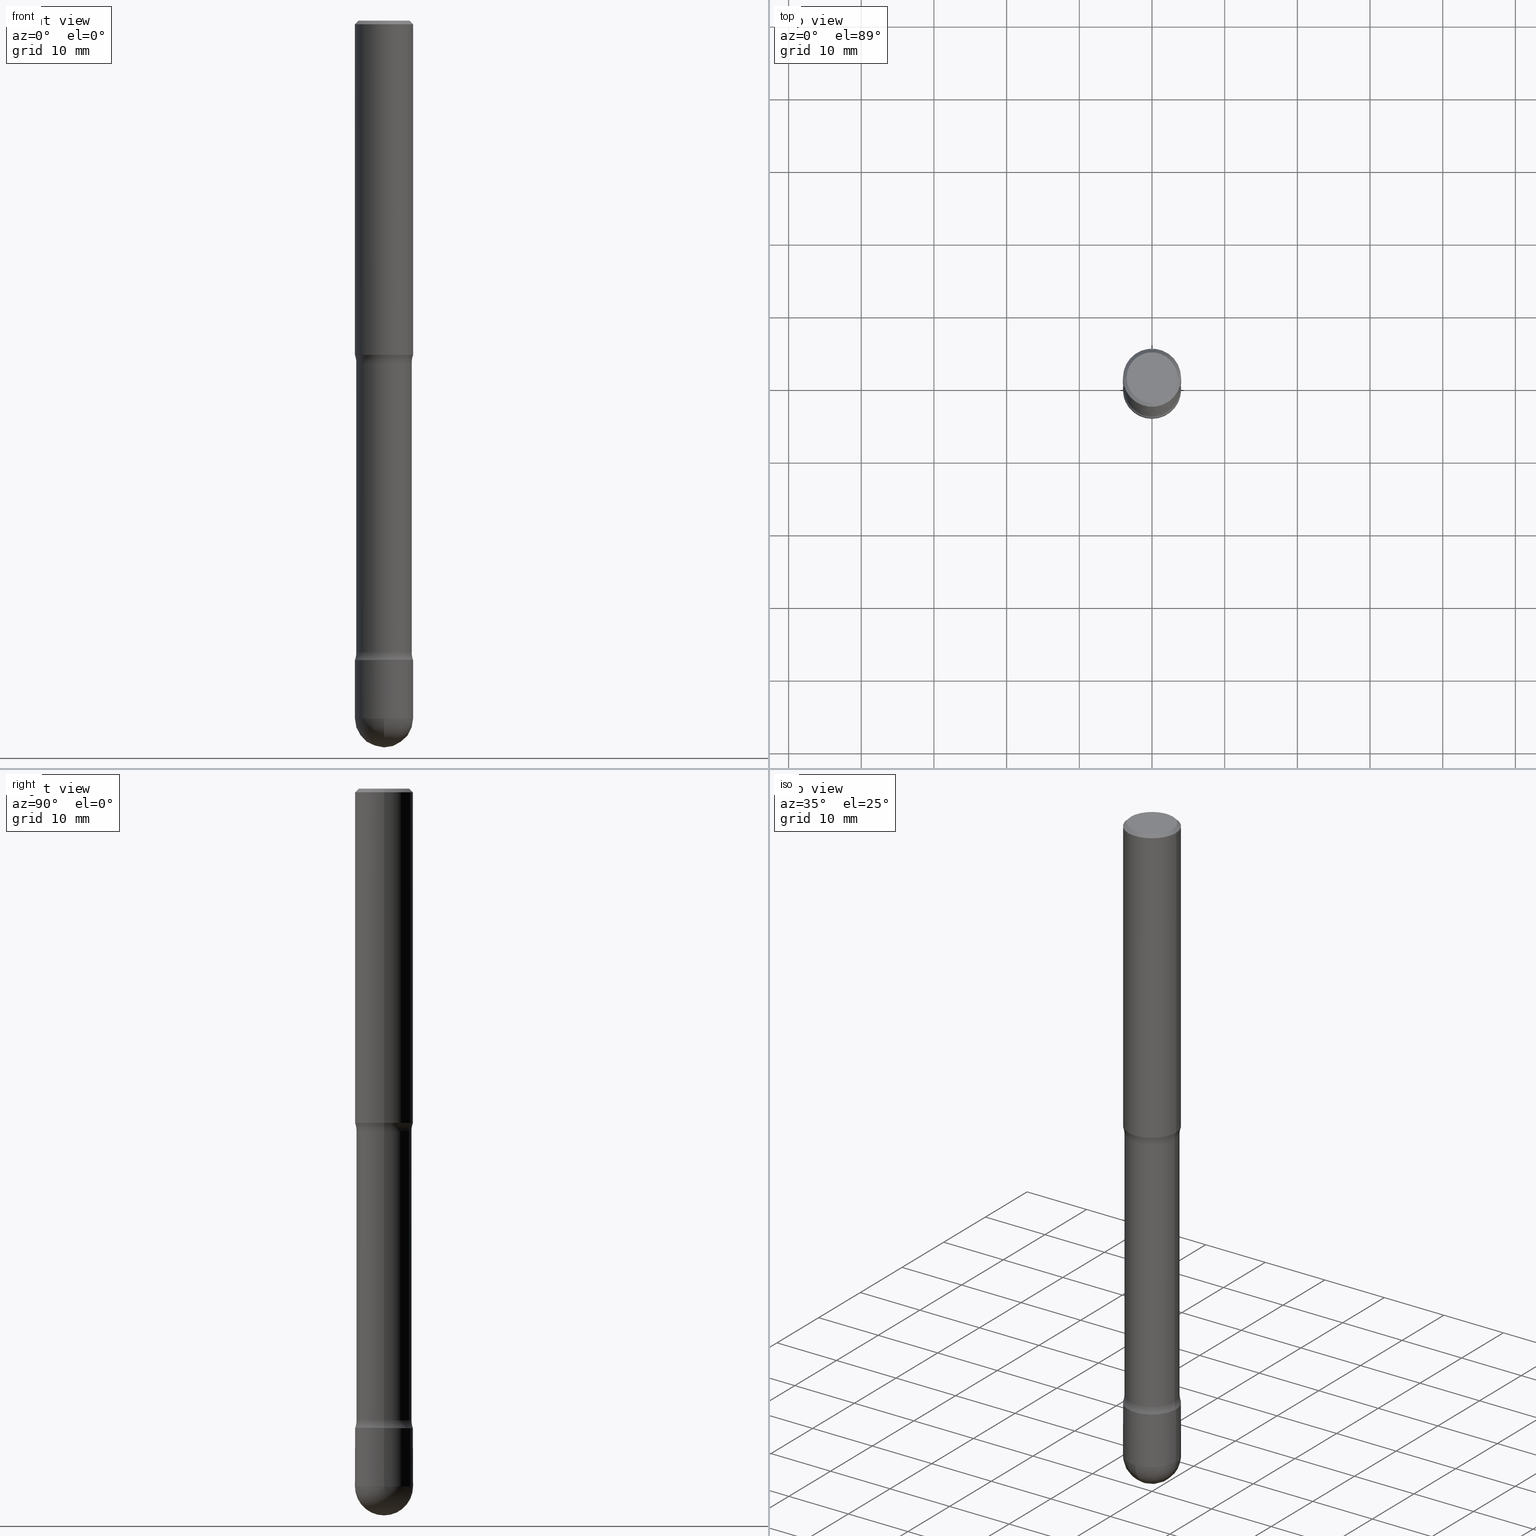
[diagram: canonical four-view strip — front | top / right | iso, engineering-drawing reading convention]
A machine part, canonical four-view strip (front | top / right | iso — engineering-drawing reading convention). The complete STEP part file that produces these views, byte-faithful:
ISO-10303-21;
HEADER;
FILE_DESCRIPTION (( 'STEP AP203' ),
    '1' );
FILE_NAME ('44616.STEP',
    '2024-02-29T19:25:39',
    ( '' ),
    ( '' ),
    'SwSTEP 2.0',
    'SolidWorks 2023',
    '' );
FILE_SCHEMA (( 'CONFIG_CONTROL_DESIGN' ));
ENDSEC;

DATA;
#1 = DIRECTION ( 'NONE',  ( -1.000000000000000000, 6.982962677686266711E-15, 0.000000000000000000 ) ) ;
#2 = EDGE_LOOP ( 'NONE', ( #315, #483, #385, #166 ) ) ;
#3 = CYLINDRICAL_SURFACE ( 'NONE', #61, 0.1499999999999998557 ) ;
#4 = CIRCLE ( 'NONE', #323, 0.1574999999999993072 ) ;
#5 = VECTOR ( 'NONE', #528, 39.37007874015748854 ) ;
#6 = VERTEX_POINT ( 'NONE', #119 ) ;
#7 = CARTESIAN_POINT ( 'NONE',  ( 0.1573673271255957018, -1.317492196341149639E-14, -3.464232672874402841 ) ) ;
#8 = DIRECTION ( 'NONE',  ( -1.000000000000000000, 6.982962677686266711E-15, 0.000000000000000000 ) ) ;
#9 = DIRECTION ( 'NONE',  ( -1.000000000000000000, 6.982962677686261977E-15, 0.000000000000000000 ) ) ;
#10 = EDGE_LOOP ( 'NONE', ( #132, #261, #346, #269 ) ) ;
#11 = DIRECTION ( 'NONE',  ( 2.445468806185136877E-29, -3.491481338843145188E-15, -1.000000000000000000 ) ) ;
#12 = APPROVAL_DATE_TIME ( #486, #389 ) ;
#13 = CARTESIAN_POINT ( 'NONE',  ( 8.472571225909024784E-29, -1.209658624655596216E-14, -3.464599999999999902 ) ) ;
#14 = ORIENTED_EDGE ( 'NONE', *, *, #124, .F. ) ;
#15 = LINE ( 'NONE', #275, #50 ) ;
#16 = DATE_AND_TIME ( #153, #371 ) ;
#17 = PLANE ( 'NONE',  #559 ) ;
#18 = AXIS2_PLACEMENT_3D ( 'NONE', #411, #501, #154 ) ;
#19 = CIRCLE ( 'NONE', #62, 0.1574999999999993072 ) ;
#20 = DIRECTION ( 'NONE',  ( -1.000000000000000000, 6.982962677686266711E-15, 0.000000000000000000 ) ) ;
#21 = APPLICATION_PROTOCOL_DEFINITION ( 'international standard', 'config_control_design', 1994, #465 ) ;
#22 = DIRECTION ( 'NONE',  ( 1.000000000000000000, -6.982962677686267499E-15, 0.000000000000000000 ) ) ;
#23 = LINE ( 'NONE', #135, #426 ) ;
#24 = EDGE_CURVE ( 'NONE', #352, #527, #78, .T. ) ;
#25 = DIRECTION ( 'NONE',  ( -1.000000000000000000, 6.982962677686269866E-15, 0.000000000000000000 ) ) ;
#26 = PERSON_AND_ORGANIZATION_ROLE ( 'creator' ) ;
#27 = FACE_OUTER_BOUND ( 'NONE', #357, .T. ) ;
#28 = ADVANCED_FACE ( 'NONE', ( #423 ), #35, .F. ) ;
#29 = COORDINATED_UNIVERSAL_TIME_OFFSET ( 5, 0, .BEHIND. ) ;
#30 = DIMENSIONAL_EXPONENTS ( 1.000000000000000000, 0.000000000000000000, 0.000000000000000000, 0.000000000000000000, 0.000000000000000000, 0.000000000000000000, 0.000000000000000000 ) ;
#31 = DIRECTION ( 'NONE',  ( -6.982962677686266711E-15, -1.000000000000000000, 3.469013325287958815E-15 ) ) ;
#32 = CONICAL_SURFACE ( 'NONE', #419, 0.1569999999999993345, 0.7853981633964721709 ) ;
#33 = EDGE_CURVE ( 'NONE', #218, #6, #298, .T. ) ;
#34 = CIRCLE ( 'NONE', #143, 0.1574999999999993072 ) ;
#35 = TOROIDAL_SURFACE ( 'NONE', #438, 0.2749999999999883649, 0.1249999999999883427 ) ;
#36 = ORGANIZATION ( 'UNSPECIFIED', 'UNSPECIFIED', '' ) ;
#37 = CC_DESIGN_PERSON_AND_ORGANIZATION_ASSIGNMENT ( #354, #454, ( #197 ) ) ;
#38 = DIRECTION ( 'NONE',  ( -6.982962677686266711E-15, -1.000000000000000000, 0.000000000000000000 ) ) ;
#39 =( NAMED_UNIT ( * ) PLANE_ANGLE_UNIT ( ) SI_UNIT ( $, .RADIAN. ) );
#40 = PRODUCT_RELATED_PRODUCT_CATEGORY ( 'detail', '', ( #148 ) ) ;
#41 = CIRCLE ( 'NONE', #360, 0.1499999999999997446 ) ;
#42 = ORIENTED_EDGE ( 'NONE', *, *, #68, .T. ) ;
#43 = EDGE_LOOP ( 'NONE', ( #396, #202, #207, #180, #244 ) ) ;
#44 = CYLINDRICAL_SURFACE ( 'NONE', #380, 0.1574999999999993350 ) ;
#45 = ORIENTED_EDGE ( 'NONE', *, *, #76, .F. ) ;
#46 = ORIENTED_EDGE ( 'NONE', *, *, #279, .T. ) ;
#47 = ORIENTED_EDGE ( 'NONE', *, *, #33, .T. ) ;
#48 = DIRECTION ( 'NONE',  ( 1.000000000000000000, -6.982962677686273810E-15, 0.000000000000000000 ) ) ;
#49 = DIRECTION ( 'NONE',  ( -2.445468806185136597E-29, 3.491481338843145583E-15, 1.000000000000000000 ) ) ;
#50 = VECTOR ( 'NONE', #451, 39.37007874015748854 ) ;
#51 = VERTEX_POINT ( 'NONE', #436 ) ;
#52 = DIRECTION ( 'NONE',  ( -1.000000000000000000, 6.982962677686267499E-15, -4.883557194083113462E-29 ) ) ;
#53 = CALENDAR_DATE ( 2024, 29, 2 ) ;
#54 = CARTESIAN_POINT ( 'NONE',  ( 4.533035439980052208E-29, -6.471973229417174909E-15, -1.853646805273080567 ) ) ;
#55 = ORIENTED_EDGE ( 'NONE', *, *, #168, .T. ) ;
#56 = ADVANCED_FACE ( 'NONE', ( #257 ), #3, .T. ) ;
#57 = CARTESIAN_POINT ( 'NONE',  ( -0.2749999999999883649, -4.551658493053532816E-15, -1.853646805273080567 ) ) ;
#58 = CARTESIAN_POINT ( 'NONE',  ( 9.229180483922148002E-29, -1.321534190724423940E-14, -3.779500000000000082 ) ) ;
#59 = CARTESIAN_POINT ( 'NONE',  ( 9.242649352976724072E-29, -1.319605372015766849E-14, -3.779500000000000082 ) ) ;
#60 = DIRECTION ( 'NONE',  ( -1.000000000000000000, 6.982962677686265922E-15, -4.876176775795935793E-29 ) ) ;
#61 = AXIS2_PLACEMENT_3D ( 'NONE', #89, #310, #9 ) ;
#62 = AXIS2_PLACEMENT_3D ( 'NONE', #59, #181, #441 ) ;
#63 = FACE_OUTER_BOUND ( 'NONE', #95, .T. ) ;
#64 = CARTESIAN_POINT ( 'NONE',  ( 0.000000000000000000, 0.000000000000000000, 0.000000000000000000 ) ) ;
#65 = DIRECTION ( 'NONE',  ( -2.445468806185136597E-29, 3.491481338843145583E-15, 1.000000000000000000 ) ) ;
#66 = PERSON_AND_ORGANIZATION ( #417, #36 ) ;
#67 = DIRECTION ( 'NONE',  ( 2.445468806185136597E-29, -3.491481338843145583E-15, -1.000000000000000000 ) ) ;
#68 = EDGE_CURVE ( 'NONE', #439, #519, #252, .T. ) ;
#69 = CIRCLE ( 'NONE', #472, 0.1574999999999997791 ) ;
#70 = ADVANCED_FACE ( 'NONE', ( #179 ), #459, .T. ) ;
#71 = ADVANCED_FACE ( 'NONE', ( #520 ), #32, .T. ) ;
#72 = ORIENTED_EDGE ( 'NONE', *, *, #444, .F. ) ;
#73 = AXIS2_PLACEMENT_3D ( 'NONE', #268, #497, #98 ) ;
#74 = AXIS2_PLACEMENT_3D ( 'NONE', #397, #213, #52 ) ;
#75 = DIRECTION ( 'NONE',  ( -1.000000000000000000, 6.982962677686265922E-15, -4.883557194083112340E-29 ) ) ;
#76 = EDGE_CURVE ( 'NONE', #519, #439, #466, .T. ) ;
#77 = ORIENTED_EDGE ( 'NONE', *, *, #508, .F. ) ;
#78 = LINE ( 'NONE', #379, #521 ) ;
#79 = EDGE_LOOP ( 'NONE', ( #112, #424 ) ) ;
#80 = AXIS2_PLACEMENT_3D ( 'NONE', #326, #189, #446 ) ;
#81 = CIRCLE ( 'NONE', #163, 0.1575000000000000011 ) ;
#82 = FACE_OUTER_BOUND ( 'NONE', #43, .T. ) ;
#83 = ORIENTED_EDGE ( 'NONE', *, *, #338, .T. ) ;
#84 = CARTESIAN_POINT ( 'NONE',  ( 8.471672938881710786E-29, -1.209530373075168983E-14, -3.464232672874402841 ) ) ;
#85 = ORIENTED_EDGE ( 'NONE', *, *, #116, .T. ) ;
#86 = DIRECTION ( 'NONE',  ( -2.445468806185136597E-29, 3.491481338843145583E-15, 1.000000000000000000 ) ) ;
#87 = CARTESIAN_POINT ( 'NONE',  ( -0.1499999999999998557, -1.104914184490302373E-14, -3.464599999999999902 ) ) ;
#88 = APPROVAL ( #533, 'UNSPECIFIED' ) ;
#89 = CARTESIAN_POINT ( 'NONE',  ( 8.472571225909024784E-29, -1.209658624655596216E-14, -3.464599999999999902 ) ) ;
#90 = EDGE_LOOP ( 'NONE', ( #523, #506, #83, #113 ) ) ;
#91 = CARTESIAN_POINT ( 'NONE',  ( 4.890937612370220610E-31, -6.982962677686216421E-17, -0.01999999999999978531 ) ) ;
#92 = FACE_OUTER_BOUND ( 'NONE', #516, .T. ) ;
#93 = AXIS2_PLACEMENT_3D ( 'NONE', #467, #260, #1 ) ;
#94 = CIRCLE ( 'NONE', #494, 0.1569999999999993345 ) ;
#95 = EDGE_LOOP ( 'NONE', ( #514, #47, #128, #210, #445 ) ) ;
#96 = CARTESIAN_POINT ( 'NONE',  ( 0.1574999999999993072, -1.374613660509239965E-14, -3.779500000000000082 ) ) ;
#97 = PERSON_AND_ORGANIZATION ( #417, #36 ) ;
#98 = DIRECTION ( 'NONE',  ( -6.982962677686266711E-15, -1.000000000000000000, 3.469013325287958815E-15 ) ) ;
#99 = CARTESIAN_POINT ( 'NONE',  ( 4.890937612370220610E-31, -6.982962677686216421E-17, -0.01999999999999978531 ) ) ;
#100 = CARTESIAN_POINT ( 'NONE',  ( 0.1574999999999993350, -1.319640286829154569E-14, -3.464599999999999902 ) ) ;
#101 = DIRECTION ( 'NONE',  ( -1.000000000000000000, 6.982962677686266711E-15, -4.883557194083112901E-29 ) ) ;
#102 = CARTESIAN_POINT ( 'NONE',  ( 8.472571225909024784E-29, -1.209658624655596216E-14, -3.464599999999999902 ) ) ;
#103 = FACE_OUTER_BOUND ( 'NONE', #2, .T. ) ;
#104 = AXIS2_PLACEMENT_3D ( 'NONE', #297, #383, #250 ) ;
#105 = CC_DESIGN_APPROVAL ( #111, ( #285 ) ) ;
#106 = DATE_TIME_ROLE ( 'creation_date' ) ;
#107 = DIRECTION ( 'NONE',  ( 2.445468806185136597E-29, -3.491481338843145583E-15, -1.000000000000000000 ) ) ;
#108 = AXIS2_PLACEMENT_3D ( 'NONE', #356, #370, #60 ) ;
#109 = AXIS2_PLACEMENT_3D ( 'NONE', #102, #264, #20 ) ;
#110 = ORIENTED_EDGE ( 'NONE', *, *, #503, .F. ) ;
#111 = APPROVAL ( #413, 'UNSPECIFIED' ) ;
#112 = ORIENTED_EDGE ( 'NONE', *, *, #375, .T. ) ;
#113 = ORIENTED_EDGE ( 'NONE', *, *, #496, .T. ) ;
#114 = CIRCLE ( 'NONE', #303, 0.1374999999999997335 ) ;
#115 = LOCAL_TIME ( 14, 25, 39.00000000000000000, #220 ) ;
#116 = EDGE_CURVE ( 'NONE', #169, #136, #512, .T. ) ;
#117 = EDGE_LOOP ( 'NONE', ( #255, #209, #251, #477 ) ) ;
#118 =( LENGTH_UNIT ( ) NAMED_UNIT ( * ) SI_UNIT ( $, .METRE. ) );
#119 = CARTESIAN_POINT ( 'NONE',  ( -0.1574999999999993350, -1.152721517453466324E-14, -3.464599999999999902 ) ) ;
#120 = LINE ( 'NONE', #289, #406 ) ;
#121 = VERTEX_POINT ( 'NONE', #201 ) ;
#122 = APPLICATION_CONTEXT ( 'configuration controlled 3d designs of mechanical parts and assemblies' ) ;
#123 = CARTESIAN_POINT ( 'NONE',  ( 4.890937612370220610E-31, -6.982962677686216421E-17, -0.01999999999999978531 ) ) ;
#124 = EDGE_CURVE ( 'NONE', #121, #457, #561, .T. ) ;
#125 = ORIENTED_EDGE ( 'NONE', *, *, #335, .F. ) ;
#126 = AXIS2_PLACEMENT_3D ( 'NONE', #435, #355, #540 ) ;
#127 = DIRECTION ( 'NONE',  ( -2.445468806185136877E-29, 3.491481338843145188E-15, 1.000000000000000000 ) ) ;
#128 = ORIENTED_EDGE ( 'NONE', *, *, #375, .F. ) ;
#129 = CC_DESIGN_PERSON_AND_ORGANIZATION_ASSIGNMENT ( #229, #26, ( #285 ) ) ;
#130 = DIRECTION ( 'NONE',  ( 1.000000000000000000, -6.982962677686269866E-15, 0.000000000000000000 ) ) ;
#131 = ORIENTED_EDGE ( 'NONE', *, *, #542, .T. ) ;
#132 = ORIENTED_EDGE ( 'NONE', *, *, #249, .F. ) ;
#133 = DIRECTION ( 'NONE',  ( -6.982962677686266711E-15, -1.000000000000000000, 3.491481338843145583E-15 ) ) ;
#134 = EDGE_CURVE ( 'NONE', #462, #121, #548, .T. ) ;
#135 = CARTESIAN_POINT ( 'NONE',  ( -0.1574999999999998901, -1.099676962482037704E-14, -3.464599999999999902 ) ) ;
#136 = VERTEX_POINT ( 'NONE', #167 ) ;
#137 = DIRECTION ( 'NONE',  ( -1.000000000000000000, 6.860497997771529196E-15, 0.000000000000000000 ) ) ;
#138 = COORDINATED_UNIVERSAL_TIME_OFFSET ( 5, 0, .BEHIND. ) ;
#139 = CYLINDRICAL_SURFACE ( 'NONE', #281, 0.1499999999999998557 ) ;
#140 = CARTESIAN_POINT ( 'NONE',  ( 8.368279793930256495E-29, -1.194768572178372876E-14, -3.421953194726920611 ) ) ;
#141 = CIRCLE ( 'NONE', #203, 0.1499999999999997446 ) ;
#142 = ADVANCED_FACE ( 'NONE', ( #517 ), #482, .T. ) ;
#143 = AXIS2_PLACEMENT_3D ( 'NONE', #272, #226, #22 ) ;
#144 = CARTESIAN_POINT ( 'NONE',  ( 4.428744008001288403E-29, -6.323072704644945461E-15, -1.811000000000002608 ) ) ;
#145 = PERSON_AND_ORGANIZATION_ROLE ( 'design_supplier' ) ;
#146 = DIRECTION ( 'NONE',  ( -2.438088387897960049E-29, 3.491481338843145188E-15, 1.000000000000000000 ) ) ;
#147 = CARTESIAN_POINT ( 'NONE',  ( -0.1575000000000000011, -5.223256082909358770E-15, -1.811000000000002608 ) ) ;
#148 = PRODUCT ( '44616', '44616', '', ( #398 ) ) ;
#149 = SPHERICAL_SURFACE ( 'NONE', #402, 0.1574999999999997513 ) ;
#150 = CALENDAR_DATE ( 2024, 29, 2 ) ;
#151 = CARTESIAN_POINT ( 'NONE',  ( 0.000000000000000000, 0.000000000000000000, 0.000000000000000000 ) ) ;
#152 = LOCAL_TIME ( 14, 25, 39.00000000000000000, #546 ) ;
#153 = CALENDAR_DATE ( 2024, 29, 2 ) ;
#154 = DIRECTION ( 'NONE',  ( 1.000000000000000000, -6.982962677686267499E-15, 0.000000000000000000 ) ) ;
#155 = ADVANCED_FACE ( 'NONE', ( #82 ), #44, .T. ) ;
#156 = CIRCLE ( 'NONE', #212, 0.1500000000000000222 ) ;
#157 = EDGE_LOOP ( 'NONE', ( #557, #390, #382, #72 ) ) ;
#158 = ORIENTED_EDGE ( 'NONE', *, *, #253, .T. ) ;
#159 = DIRECTION ( 'NONE',  ( 2.445468806185136597E-29, -3.491481338843145583E-15, -1.000000000000000000 ) ) ;
#160 = ORIENTED_EDGE ( 'NONE', *, *, #378, .F. ) ;
#161 = PLANE ( 'NONE',  #296 ) ;
#162 = AXIS2_PLACEMENT_3D ( 'NONE', #84, #216, #248 ) ;
#163 = AXIS2_PLACEMENT_3D ( 'NONE', #316, #538, #488 ) ;
#164 = CARTESIAN_POINT ( 'NONE',  ( 0.1499999999999998557, -1.312566094622169094E-14, -3.464599999999999902 ) ) ;
#165 = CARTESIAN_POINT ( 'NONE',  ( 1.096325140396823951E-15, 0.1569999999999872609, -3.464600000000000346 ) ) ;
#166 = ORIENTED_EDGE ( 'NONE', *, *, #338, .F. ) ;
#167 = CARTESIAN_POINT ( 'NONE',  ( -1.099816621735491436E-15, -0.1575000000000127409, -3.779499999999999194 ) ) ;
#168 = EDGE_CURVE ( 'NONE', #256, #349, #114, .T. ) ;
#169 = VERTEX_POINT ( 'NONE', #449 ) ;
#170 = ORIENTED_EDGE ( 'NONE', *, *, #171, .T. ) ;
#171 = EDGE_CURVE ( 'NONE', #349, #256, #230, .T. ) ;
#172 = ORIENTED_EDGE ( 'NONE', *, *, #329, .F. ) ;
#173 = VECTOR ( 'NONE', #306, 39.37007874015748143 ) ;
#174 = APPROVAL_PERSON_ORGANIZATION ( #489, #389, #452 ) ;
#175 = CARTESIAN_POINT ( 'NONE',  ( -0.1574999999999993350, 1.119104808822153067E-15, -7.747322767151444755E-30 ) ) ;
#176 = ORIENTED_EDGE ( 'NONE', *, *, #134, .T. ) ;
#177 = LINE ( 'NONE', #350, #5 ) ;
#178 = CARTESIAN_POINT ( 'NONE',  ( 0.2749999999999883649, -8.358610178804266256E-15, -1.853646805273080567 ) ) ;
#179 = FACE_OUTER_BOUND ( 'NONE', #526, .T. ) ;
#180 = ORIENTED_EDGE ( 'NONE', *, *, #24, .T. ) ;
#181 = DIRECTION ( 'NONE',  ( -2.445468806185136597E-29, 3.491481338843145583E-15, 1.000000000000000000 ) ) ;
#182 = PERSON_AND_ORGANIZATION ( #417, #36 ) ;
#183 = CARTESIAN_POINT ( 'NONE',  ( 9.601573681818597005E-16, 0.1374999999999997335, -4.779444278458813133E-16 ) ) ;
#184 = ORIENTED_EDGE ( 'NONE', *, *, #168, .F. ) ;
#185 = CARTESIAN_POINT ( 'NONE',  ( -0.2749999999999881428, -1.002737098542009693E-14, -3.421953194726923275 ) ) ;
#186 = DIRECTION ( 'NONE',  ( 2.445468806185136597E-29, -3.491481338843145583E-15, -1.000000000000000000 ) ) ;
#187 = CIRCLE ( 'NONE', #358, 0.1574999999999993350 ) ;
#188 = AXIS2_PLACEMENT_3D ( 'NONE', #363, #224, #543 ) ;
#189 = DIRECTION ( 'NONE',  ( 2.445468806185136597E-29, -3.491481338843145583E-15, -1.000000000000000000 ) ) ;
#190 = CARTESIAN_POINT ( 'NONE',  ( 1.119104808822246547E-15, 0.1574999999999863454, -3.779500000000000526 ) ) ;
#191 = DATE_AND_TIME ( #53, #560 ) ;
#192 = CARTESIAN_POINT ( 'NONE',  ( -0.1574999999999997791, 1.029986994958723393E-15, -0.01999999999999978531 ) ) ;
#193 = CC_DESIGN_DATE_AND_TIME_ASSIGNMENT ( #404, #495, ( #197 ) ) ;
#194 = APPROVAL_ROLE ( '' ) ;
#195 = CARTESIAN_POINT ( 'NONE',  ( 9.242649352976724072E-29, -1.319605372015766849E-14, -3.779500000000000082 ) ) ;
#196 = CLOSED_SHELL ( 'NONE', ( #511, #330, #56, #299, #412, #142, #70, #515, #28, #529, #437, #71, #551, #291 ) ) ;
#197 = SECURITY_CLASSIFICATION ( '', '', #321 ) ;
#198 = CARTESIAN_POINT ( 'NONE',  ( 8.368279793930256495E-29, -1.194768572178372876E-14, -3.421953194726920611 ) ) ;
#199 = EDGE_CURVE ( 'NONE', #352, #307, #4, .T. ) ;
#200 = VERTEX_POINT ( 'NONE', #322 ) ;
#201 = CARTESIAN_POINT ( 'NONE',  ( 0.1500000000000000222, -7.452324534188433652E-15, -1.853646805273080567 ) ) ;
#202 = ORIENTED_EDGE ( 'NONE', *, *, #329, .T. ) ;
#203 = AXIS2_PLACEMENT_3D ( 'NONE', #140, #107, #544 ) ;
#204 = VECTOR ( 'NONE', #11, 39.37007874015748143 ) ;
#205 = EDGE_CURVE ( 'NONE', #457, #566, #141, .T. ) ;
#206 = ORIENTED_EDGE ( 'NONE', *, *, #242, .T. ) ;
#207 = ORIENTED_EDGE ( 'NONE', *, *, #508, .T. ) ;
#208 = DIRECTION ( 'NONE',  ( -2.445468806185136877E-29, 3.491481338843145188E-15, 1.000000000000000000 ) ) ;
#209 = ORIENTED_EDGE ( 'NONE', *, *, #458, .T. ) ;
#210 = ORIENTED_EDGE ( 'NONE', *, *, #24, .F. ) ;
#211 = ORIENTED_EDGE ( 'NONE', *, *, #458, .F. ) ;
#212 = AXIS2_PLACEMENT_3D ( 'NONE', #54, #455, #227 ) ;
#213 = DIRECTION ( 'NONE',  ( 2.445468806185136597E-29, -3.491481338843145583E-15, -1.000000000000000000 ) ) ;
#214 = APPROVAL_PERSON_ORGANIZATION ( #276, #88, #225 ) ;
#215 = CYLINDRICAL_SURFACE ( 'NONE', #337, 0.1574999999999998901 ) ;
#216 = DIRECTION ( 'NONE',  ( 2.445468806185136597E-29, -3.491481338843145583E-15, -1.000000000000000000 ) ) ;
#217 = ADVANCED_FACE ( 'NONE', ( #447 ), #414, .T. ) ;
#218 = VERTEX_POINT ( 'NONE', #280 ) ;
#219 = FACE_OUTER_BOUND ( 'NONE', #117, .T. ) ;
#220 = COORDINATED_UNIVERSAL_TIME_OFFSET ( 5, 0, .BEHIND. ) ;
#221 = DIRECTION ( 'NONE',  ( 6.860497997771531562E-15, 1.000000000000000000, -3.491481338843145583E-15 ) ) ;
#222 = DIRECTION ( 'NONE',  ( -2.445468806185136597E-29, 3.491481338843145583E-15, 1.000000000000000000 ) ) ;
#223 = ORIENTED_EDGE ( 'NONE', *, *, #542, .F. ) ;
#224 = DIRECTION ( 'NONE',  ( -2.445468806185136597E-29, 3.491481338843145583E-15, 1.000000000000000000 ) ) ;
#225 = APPROVAL_ROLE ( '' ) ;
#226 = DIRECTION ( 'NONE',  ( -2.445468806185136597E-29, 3.491481338843145583E-15, 1.000000000000000000 ) ) ;
#227 = DIRECTION ( 'NONE',  ( -1.000000000000000000, 6.982962677686266711E-15, 0.000000000000000000 ) ) ;
#228 = LINE ( 'NONE', #394, #204 ) ;
#229 = PERSON_AND_ORGANIZATION ( #417, #36 ) ;
#230 = CIRCLE ( 'NONE', #246, 0.1374999999999997335 ) ;
#231 = DIRECTION ( 'NONE',  ( -1.000000000000000000, 6.982962677686266711E-15, 0.000000000000000000 ) ) ;
#232 = ADVANCED_FACE ( 'NONE', ( #27 ), #149, .T. ) ;
#233 = DIRECTION ( 'NONE',  ( 2.445468806185136597E-29, -3.491481338843145583E-15, -1.000000000000000000 ) ) ;
#234 = AXIS2_PLACEMENT_3D ( 'NONE', #550, #479, #524 ) ;
#235 = DIRECTION ( 'NONE',  ( -1.000000000000000000, 6.982962677686266711E-15, 0.000000000000000000 ) ) ;
#236 = APPROVAL_STATUS ( 'not_yet_approved' ) ;
#237 = DIRECTION ( 'NONE',  ( 1.000000000000000000, -6.982962677686266711E-15, 0.000000000000000000 ) ) ;
#238 = CC_DESIGN_PERSON_AND_ORGANIZATION_ASSIGNMENT ( #66, #442, ( #148 ) ) ;
#239 = CALENDAR_DATE ( 2024, 29, 2 ) ;
#240 = CARTESIAN_POINT ( 'NONE',  ( -0.1374999999999997335, 9.601573681818597005E-16, -6.704743066719399103E-30 ) ) ;
#241 = VECTOR ( 'NONE', #368, 39.37007874015748143 ) ;
#242 = EDGE_CURVE ( 'NONE', #121, #462, #156, .T. ) ;
#243 = ADVANCED_BREP_SHAPE_REPRESENTATION ( '44616', ( #498, #292, #450 ), #305 ) ;
#244 = ORIENTED_EDGE ( 'NONE', *, *, #309, .F. ) ;
#245 = ORIENTED_EDGE ( 'NONE', *, *, #416, .T. ) ;
#246 = AXIS2_PLACEMENT_3D ( 'NONE', #324, #233, #443 ) ;
#247 = CC_DESIGN_APPROVAL ( #389, ( #420 ) ) ;
#248 = DIRECTION ( 'NONE',  ( -1.000000000000000000, 6.982962677686270655E-15, 0.000000000000000000 ) ) ;
#249 = EDGE_CURVE ( 'NONE', #200, #475, #263, .T. ) ;
#250 = DIRECTION ( 'NONE',  ( -1.000000000000000000, 6.982962677686270655E-15, 0.000000000000000000 ) ) ;
#251 = ORIENTED_EDGE ( 'NONE', *, *, #496, .F. ) ;
#252 = CIRCLE ( 'NONE', #104, 0.1573673271255957018 ) ;
#253 = EDGE_CURVE ( 'NONE', #256, #507, #480, .T. ) ;
#254 = AXIS2_PLACEMENT_3D ( 'NONE', #403, #532, #137 ) ;
#255 = ORIENTED_EDGE ( 'NONE', *, *, #502, .T. ) ;
#256 = VERTEX_POINT ( 'NONE', #240 ) ;
#257 = FACE_OUTER_BOUND ( 'NONE', #464, .T. ) ;
#258 = EDGE_LOOP ( 'NONE', ( #211, #288, #46, #332 ) ) ;
#259 = DIRECTION ( 'NONE',  ( 2.445468806185136597E-29, -3.491481338843145583E-15, -1.000000000000000000 ) ) ;
#260 = DIRECTION ( 'NONE',  ( 2.445468806185136597E-29, -3.491481338843145583E-15, -1.000000000000000000 ) ) ;
#261 = ORIENTED_EDGE ( 'NONE', *, *, #372, .T. ) ;
#262 = CC_DESIGN_SECURITY_CLASSIFICATION ( #197, ( #420 ) ) ;
#263 = CIRCLE ( 'NONE', #336, 0.1569999999999993345 ) ;
#264 = DIRECTION ( 'NONE',  ( 2.445468806185136597E-29, -3.491481338843145583E-15, -1.000000000000000000 ) ) ;
#265 = CALENDAR_DATE ( 2024, 29, 2 ) ;
#266 = VECTOR ( 'NONE', #490, 39.37007874015748143 ) ;
#267 = FACE_OUTER_BOUND ( 'NONE', #341, .T. ) ;
#268 = CARTESIAN_POINT ( 'NONE',  ( 9.229180483922148002E-29, -1.321534190724423940E-14, -3.779500000000000082 ) ) ;
#269 = ORIENTED_EDGE ( 'NONE', *, *, #456, .F. ) ;
#270 = CARTESIAN_POINT ( 'NONE',  ( -0.1500000000000000222, -5.424528827764234902E-15, -1.853646805273080567 ) ) ;
#271 = COORDINATED_UNIVERSAL_TIME_OFFSET ( 5, 0, .BEHIND. ) ;
#272 = CARTESIAN_POINT ( 'NONE',  ( 9.242649352976724072E-29, -1.319605372015766849E-14, -3.779500000000000082 ) ) ;
#273 = DIRECTION ( 'NONE',  ( -2.445468806185136597E-29, 3.491481338843145583E-15, 1.000000000000000000 ) ) ;
#274 = ADVANCED_FACE ( 'NONE', ( #487 ), #493, .F. ) ;
#275 = CARTESIAN_POINT ( 'NONE',  ( -0.1569999999999993345, -1.098103415141260940E-14, -3.464599999999999902 ) ) ;
#276 = PERSON_AND_ORGANIZATION ( #417, #36 ) ;
#277 = DIRECTION ( 'NONE',  ( 1.000000000000000000, -6.982962677686266711E-15, 4.876176775795936353E-29 ) ) ;
#278 = DIRECTION ( 'NONE',  ( 2.445468806185136597E-29, -3.491481338843145583E-15, -1.000000000000000000 ) ) ;
#279 = EDGE_CURVE ( 'NONE', #507, #388, #23, .T. ) ;
#280 = CARTESIAN_POINT ( 'NONE',  ( -0.1574999999999993072, -1.152721517453466482E-14, -3.779500000000000082 ) ) ;
#281 = AXIS2_PLACEMENT_3D ( 'NONE', #418, #159, #562 ) ;
#282 = PERSON_AND_ORGANIZATION ( #417, #36 ) ;
#283 = DIRECTION ( 'NONE',  ( 1.000000000000000000, -6.982962677686267499E-15, 0.000000000000000000 ) ) ;
#284 = FACE_OUTER_BOUND ( 'NONE', #157, .T. ) ;
#285 = PRODUCT_DEFINITION ( 'UNKNOWN', '', #420, #499 ) ;
#286 = AXIS2_PLACEMENT_3D ( 'NONE', #361, #319, #101 ) ;
#287 = CIRCLE ( 'NONE', #328, 0.1574999999999997791 ) ;
#288 = ORIENTED_EDGE ( 'NONE', *, *, #378, .T. ) ;
#289 = CARTESIAN_POINT ( 'NONE',  ( 0.1574999999999997791, -1.150358061425876908E-15, -0.01999999999999978531 ) ) ;
#290 = VERTEX_POINT ( 'NONE', #401 ) ;
#291 = ADVANCED_FACE ( 'NONE', ( #92 ), #17, .T. ) ;
#292 = MANIFOLD_SOLID_BREP ( 'Body-Move/Copy2[2]', #196 ) ;
#293 = ORIENTED_EDGE ( 'NONE', *, *, #249, .T. ) ;
#294 = CC_DESIGN_PERSON_AND_ORGANIZATION_ASSIGNMENT ( #182, #145, ( #420 ) ) ;
#295 = AXIS2_PLACEMENT_3D ( 'NONE', #339, #425, #565 ) ;
#296 = AXIS2_PLACEMENT_3D ( 'NONE', #165, #422, #463 ) ;
#297 = CARTESIAN_POINT ( 'NONE',  ( 8.471672938881710786E-29, -1.209530373075168983E-14, -3.464232672874402841 ) ) ;
#298 = LINE ( 'NONE', #175, #369 ) ;
#299 = ADVANCED_FACE ( 'NONE', ( #103 ), #536, .F. ) ;
#300 = LENGTH_MEASURE_WITH_UNIT ( LENGTH_MEASURE( 0.02539999999999999897 ), #118 );
#301 = ORIENTED_EDGE ( 'NONE', *, *, #503, .T. ) ;
#302 = DIRECTION ( 'NONE',  ( 2.445468806185136597E-29, -3.491481338843145583E-15, -1.000000000000000000 ) ) ;
#303 = AXIS2_PLACEMENT_3D ( 'NONE', #151, #491, #453 ) ;
#304 = EDGE_LOOP ( 'NONE', ( #55, #131, #469, #393 ) ) ;
#305 =( GEOMETRIC_REPRESENTATION_CONTEXT ( 3 ) GLOBAL_UNCERTAINTY_ASSIGNED_CONTEXT ( ( #552 ) ) GLOBAL_UNIT_ASSIGNED_CONTEXT ( ( #421, #39, #340 ) ) REPRESENTATION_CONTEXT ( 'NONE', 'WORKASPACE' ) );
#306 = DIRECTION ( 'NONE',  ( 2.445468806185136877E-29, -3.491481338843145188E-15, -1.000000000000000000 ) ) ;
#307 = VERTEX_POINT ( 'NONE', #190 ) ;
#308 = CARTESIAN_POINT ( 'NONE',  ( 0.1374999999999997335, -1.046838268059730322E-15, 7.017535886221982554E-30 ) ) ;
#309 = EDGE_CURVE ( 'NONE', #6, #527, #187, .T. ) ;
#310 = DIRECTION ( 'NONE',  ( 2.445468806185136597E-29, -3.491481338843145583E-15, -1.000000000000000000 ) ) ;
#311 = ORIENTED_EDGE ( 'NONE', *, *, #444, .T. ) ;
#312 = CYLINDRICAL_SURFACE ( 'NONE', #558, 0.1574999999999993350 ) ;
#313 = CARTESIAN_POINT ( 'NONE',  ( -0.1573673271255957018, -1.099641355874640939E-14, -3.464232672874402841 ) ) ;
#314 = DIRECTION ( 'NONE',  ( 2.445468806185136877E-29, -3.491481338843145188E-15, -1.000000000000000000 ) ) ;
#315 = ORIENTED_EDGE ( 'NONE', *, *, #242, .F. ) ;
#316 = CARTESIAN_POINT ( 'NONE',  ( 4.428744008001288403E-29, -6.323072704644945461E-15, -1.811000000000002608 ) ) ;
#317 = APPROVAL_DATE_TIME ( #410, #88 ) ;
#318 = FACE_OUTER_BOUND ( 'NONE', #428, .T. ) ;
#319 = DIRECTION ( 'NONE',  ( 2.445468806185136597E-29, -3.491481338843145583E-15, -1.000000000000000000 ) ) ;
#320 = DIRECTION ( 'NONE',  ( 1.000000000000000000, -6.982962677686266711E-15, 4.876176775795936353E-29 ) ) ;
#321 = SECURITY_CLASSIFICATION_LEVEL ( 'unclassified' ) ;
#322 = CARTESIAN_POINT ( 'NONE',  ( -0.1569999999999993345, -1.097908788540677166E-14, -3.464599999999999902 ) ) ;
#323 = AXIS2_PLACEMENT_3D ( 'NONE', #195, #222, #283 ) ;
#324 = CARTESIAN_POINT ( 'NONE',  ( 0.000000000000000000, 0.000000000000000000, 0.000000000000000000 ) ) ;
#325 = DIRECTION ( 'NONE',  ( 1.000000000000000000, 0.000000000000000000, 0.000000000000000000 ) ) ;
#326 = CARTESIAN_POINT ( 'NONE',  ( 8.368279793930263222E-29, -1.194768572178373665E-14, -3.421953194726923275 ) ) ;
#327 = TOROIDAL_SURFACE ( 'NONE', #80, 0.2749999999999881428, 0.1249999999999881206 ) ;
#328 = AXIS2_PLACEMENT_3D ( 'NONE', #99, #448, #231 ) ;
#329 = EDGE_CURVE ( 'NONE', #218, #136, #504, .T. ) ;
#330 = ADVANCED_FACE ( 'NONE', ( #284 ), #327, .F. ) ;
#331 = CARTESIAN_POINT ( 'NONE',  ( -0.1499999999999997446, -1.090024132013079034E-14, -3.421953194726920611 ) ) ;
#332 = ORIENTED_EDGE ( 'NONE', *, *, #386, .F. ) ;
#333 = FACE_OUTER_BOUND ( 'NONE', #473, .T. ) ;
#334 = ORIENTED_EDGE ( 'NONE', *, *, #461, .F. ) ;
#335 = EDGE_CURVE ( 'NONE', #169, #307, #471, .T. ) ;
#336 = AXIS2_PLACEMENT_3D ( 'NONE', #13, #67, #408 ) ;
#337 = AXIS2_PLACEMENT_3D ( 'NONE', #534, #186, #8 ) ;
#338 = EDGE_CURVE ( 'NONE', #462, #388, #554, .T. ) ;
#339 = CARTESIAN_POINT ( 'NONE',  ( 4.533035439980052208E-29, -6.471973229417174909E-15, -1.853646805273080567 ) ) ;
#340 =( NAMED_UNIT ( * ) SI_UNIT ( $, .STERADIAN. ) SOLID_ANGLE_UNIT ( ) );
#341 = EDGE_LOOP ( 'NONE', ( #14, #206, #301, #377 ) ) ;
#342 = ORIENTED_EDGE ( 'NONE', *, *, #564, .F. ) ;
#343 = ORIENTED_EDGE ( 'NONE', *, *, #372, .F. ) ;
#344 = DIRECTION ( 'NONE',  ( 2.445468806185136597E-29, -3.491481338843145583E-15, -1.000000000000000000 ) ) ;
#345 = AXIS2_PLACEMENT_3D ( 'NONE', #392, #75, #38 ) ;
#346 = ORIENTED_EDGE ( 'NONE', *, *, #76, .T. ) ;
#347 = APPROVAL_PERSON_ORGANIZATION ( #282, #111, #194 ) ;
#348 = CARTESIAN_POINT ( 'NONE',  ( 8.472571225909024784E-29, -1.209658624655596216E-14, -3.464599999999999902 ) ) ;
#349 = VERTEX_POINT ( 'NONE', #308 ) ;
#350 = CARTESIAN_POINT ( 'NONE',  ( 0.1569999999999993345, -1.319291138695270268E-14, -3.464599999999999902 ) ) ;
#351 = DIRECTION ( 'NONE',  ( -1.000000000000000000, 6.860497997771533140E-15, 0.000000000000000000 ) ) ;
#352 = VERTEX_POINT ( 'NONE', #96 ) ;
#353 = DIRECTION ( 'NONE',  ( 2.445468806185136597E-29, -3.491481338843145583E-15, -1.000000000000000000 ) ) ;
#354 = PERSON_AND_ORGANIZATION ( #417, #36 ) ;
#355 = DIRECTION ( 'NONE',  ( -2.445468806185136597E-29, 3.491481338843145583E-15, 1.000000000000000000 ) ) ;
#356 = CARTESIAN_POINT ( 'NONE',  ( 8.472571225909024784E-29, -1.209658624655596216E-14, -3.464599999999999902 ) ) ;
#357 = EDGE_LOOP ( 'NONE', ( #433, #400, #556, #77 ) ) ;
#358 = AXIS2_PLACEMENT_3D ( 'NONE', #366, #65, #237 ) ;
#359 = CARTESIAN_POINT ( 'NONE',  ( 0.1569999999999993345, -1.319355264485483727E-14, -3.464599999999999902 ) ) ;
#360 = AXIS2_PLACEMENT_3D ( 'NONE', #198, #555, #509 ) ;
#361 = CARTESIAN_POINT ( 'NONE',  ( 4.533035439980052208E-29, -6.471973229417174909E-15, -1.853646805273080567 ) ) ;
#362 = ADVANCED_FACE ( 'NONE', ( #63 ), #312, .T. ) ;
#363 = CARTESIAN_POINT ( 'NONE',  ( 8.472571225909024784E-29, -1.209658624655596216E-14, -3.464599999999999902 ) ) ;
#364 = DIRECTION ( 'NONE',  ( 0.000000000000000000, 0.000000000000000000, 1.000000000000000000 ) ) ;
#365 = FACE_OUTER_BOUND ( 'NONE', #10, .T. ) ;
#366 = CARTESIAN_POINT ( 'NONE',  ( 8.472571225909024784E-29, -1.209658624655596216E-14, -3.464599999999999902 ) ) ;
#367 = APPROVAL_DATE_TIME ( #191, #111 ) ;
#368 = DIRECTION ( 'NONE',  ( -0.7071067811865523467, 2.468850131082307548E-15, -0.7071067811865426878 ) ) ;
#369 = VECTOR ( 'NONE', #127, 39.37007874015748143 ) ;
#370 = DIRECTION ( 'NONE',  ( 2.438088387897960049E-29, -3.491481338843145188E-15, -1.000000000000000000 ) ) ;
#371 = LOCAL_TIME ( 14, 25, 39.00000000000000000, #271 ) ;
#372 = EDGE_CURVE ( 'NONE', #200, #519, #15, .T. ) ;
#373 = CLOSED_SHELL ( 'NONE', ( #362, #232, #217, #155, #274 ) ) ;
#374 = CIRCLE ( 'NONE', #254, 0.1249999999999881206 ) ;
#375 = EDGE_CURVE ( 'NONE', #527, #6, #460, .T. ) ;
#376 = DIRECTION ( 'NONE',  ( 0.7071067811865523467, -7.319954787623271823E-15, -0.7071067811865426878 ) ) ;
#377 = ORIENTED_EDGE ( 'NONE', *, *, #205, .F. ) ;
#378 = EDGE_CURVE ( 'NONE', #290, #507, #69, .T. ) ;
#379 = CARTESIAN_POINT ( 'NONE',  ( 0.1574999999999993350, -1.099816621735582353E-15, 7.679978421878567204E-30 ) ) ;
#380 = AXIS2_PLACEMENT_3D ( 'NONE', #547, #273, #277 ) ;
#381 = CIRCLE ( 'NONE', #427, 0.1575000000000000011 ) ;
#382 = ORIENTED_EDGE ( 'NONE', *, *, #205, .T. ) ;
#383 = DIRECTION ( 'NONE',  ( 2.445468806185136597E-29, -3.491481338843145583E-15, -1.000000000000000000 ) ) ;
#384 = ORIENTED_EDGE ( 'NONE', *, *, #171, .F. ) ;
#385 = ORIENTED_EDGE ( 'NONE', *, *, #386, .T. ) ;
#386 = EDGE_CURVE ( 'NONE', #51, #388, #381, .T. ) ;
#387 = ORIENTED_EDGE ( 'NONE', *, *, #564, .T. ) ;
#388 = VERTEX_POINT ( 'NONE', #147 ) ;
#389 = APPROVAL ( #236, 'UNSPECIFIED' ) ;
#390 = ORIENTED_EDGE ( 'NONE', *, *, #461, .T. ) ;
#391 = DIRECTION ( 'NONE',  ( -6.982962677686266711E-15, -1.000000000000000000, 3.491481338843145583E-15 ) ) ;
#392 = CARTESIAN_POINT ( 'NONE',  ( 9.229180483922148002E-29, -1.321534190724423940E-14, -3.779500000000000082 ) ) ;
#393 = ORIENTED_EDGE ( 'NONE', *, *, #253, .F. ) ;
#394 = CARTESIAN_POINT ( 'NONE',  ( 0.1574999999999998901, -1.317711468120497794E-14, -3.464599999999999902 ) ) ;
#395 = PERSON_AND_ORGANIZATION_ROLE ( 'creator' ) ;
#396 = ORIENTED_EDGE ( 'NONE', *, *, #33, .F. ) ;
#397 = CARTESIAN_POINT ( 'NONE',  ( 8.368279793930263222E-29, -1.194768572178373665E-14, -3.421953194726923275 ) ) ;
#398 = MECHANICAL_CONTEXT ( 'NONE', #465, 'mechanical' ) ;
#399 = FACE_OUTER_BOUND ( 'NONE', #258, .T. ) ;
#400 = ORIENTED_EDGE ( 'NONE', *, *, #335, .T. ) ;
#401 = CARTESIAN_POINT ( 'NONE',  ( 0.1574999999999997791, -1.150358061425876908E-15, -0.01999999999999978531 ) ) ;
#402 = AXIS2_PLACEMENT_3D ( 'NONE', #58, #541, #31 ) ;
#403 = CARTESIAN_POINT ( 'NONE',  ( 0.2749999999999881428, -1.383432267117082642E-14, -3.421953194726923275 ) ) ;
#404 = DATE_AND_TIME ( #239, #152 ) ;
#405 = PRODUCT_DEFINITION_SHAPE ( 'NONE', 'NONE',  #285 ) ;
#406 = VECTOR ( 'NONE', #376, 39.37007874015748143 ) ;
#407 = LINE ( 'NONE', #87, #266 ) ;
#408 = DIRECTION ( 'NONE',  ( -1.000000000000000000, 6.982962677686269866E-15, 0.000000000000000000 ) ) ;
#409 = DIRECTION ( 'NONE',  ( -1.000000000000000000, 6.982962677686268288E-15, 0.000000000000000000 ) ) ;
#410 = DATE_AND_TIME ( #150, #549 ) ;
#411 = CARTESIAN_POINT ( 'NONE',  ( 9.242649352976724072E-29, -1.319605372015766849E-14, -3.779500000000000082 ) ) ;
#412 = ADVANCED_FACE ( 'NONE', ( #219 ), #434, .T. ) ;
#413 = APPROVAL_STATUS ( 'not_yet_approved' ) ;
#414 = SPHERICAL_SURFACE ( 'NONE', #73, 0.1574999999999997513 ) ;
#415 = AXIS2_PLACEMENT_3D ( 'NONE', #57, #391, #130 ) ;
#416 = EDGE_CURVE ( 'NONE', #475, #200, #94, .T. ) ;
#417 = PERSON ( 'UNSPECIFIED', 'UNSPECIFIED', 'UNSPECIFIED', ('UNSPECIFIED'), ('UNSPECIFIED'), ('UNSPECIFIED') ) ;
#418 = CARTESIAN_POINT ( 'NONE',  ( 8.472571225909024784E-29, -1.209658624655596216E-14, -3.464599999999999902 ) ) ;
#419 = AXIS2_PLACEMENT_3D ( 'NONE', #348, #49, #530 ) ;
#420 = PRODUCT_DEFINITION_FORMATION_WITH_SPECIFIED_SOURCE ( 'ANY', '', #148, .NOT_KNOWN. ) ;
#421 =( CONVERSION_BASED_UNIT ( 'INCH', #300 ) LENGTH_UNIT ( ) NAMED_UNIT ( #30 ) );
#422 = DIRECTION ( 'NONE',  ( 2.438088387897960049E-29, -3.491481338843145188E-15, -1.000000000000000000 ) ) ;
#423 = FACE_OUTER_BOUND ( 'NONE', #90, .T. ) ;
#424 = ORIENTED_EDGE ( 'NONE', *, *, #309, .T. ) ;
#425 = DIRECTION ( 'NONE',  ( 2.445468806185136597E-29, -3.491481338843145583E-15, -1.000000000000000000 ) ) ;
#426 = VECTOR ( 'NONE', #314, 39.37007874015748143 ) ;
#427 = AXIS2_PLACEMENT_3D ( 'NONE', #144, #259, #409 ) ;
#428 = EDGE_LOOP ( 'NONE', ( #334, #45, #311, #387 ) ) ;
#429 = CARTESIAN_POINT ( 'NONE',  ( 4.533035439980052208E-29, -6.471973229417174909E-15, -1.853646805273080567 ) ) ;
#430 = EDGE_LOOP ( 'NONE', ( #343, #432, #531, #42 ) ) ;
#431 = EDGE_CURVE ( 'NONE', #307, #218, #19, .T. ) ;
#432 = ORIENTED_EDGE ( 'NONE', *, *, #416, .F. ) ;
#433 = ORIENTED_EDGE ( 'NONE', *, *, #116, .F. ) ;
#434 = CYLINDRICAL_SURFACE ( 'NONE', #109, 0.1574999999999998901 ) ;
#435 = CARTESIAN_POINT ( 'NONE',  ( 8.472571225909024784E-29, -1.209658624655596216E-14, -3.464599999999999902 ) ) ;
#436 = CARTESIAN_POINT ( 'NONE',  ( 0.1575000000000000011, -4.276979600359918976E-15, -1.811000000000002608 ) ) ;
#437 = ADVANCED_FACE ( 'NONE', ( #318 ), #505, .F. ) ;
#438 = AXIS2_PLACEMENT_3D ( 'NONE', #429, #344, #468 ) ;
#439 = VERTEX_POINT ( 'NONE', #7 ) ;
#440 = CONICAL_SURFACE ( 'NONE', #126, 0.1569999999999993345, 0.7853981633964721709 ) ;
#441 = DIRECTION ( 'NONE',  ( 1.000000000000000000, -6.982962677686267499E-15, 0.000000000000000000 ) ) ;
#442 = PERSON_AND_ORGANIZATION_ROLE ( 'design_owner' ) ;
#443 = DIRECTION ( 'NONE',  ( -1.000000000000000000, 6.982962677686265922E-15, -4.876176775795935793E-29 ) ) ;
#444 = EDGE_CURVE ( 'NONE', #519, #566, #513, .T. ) ;
#445 = ORIENTED_EDGE ( 'NONE', *, *, #199, .T. ) ;
#446 = DIRECTION ( 'NONE',  ( -1.000000000000000000, 6.982962677686267499E-15, -4.883557194083113462E-29 ) ) ;
#447 = FACE_OUTER_BOUND ( 'NONE', #478, .T. ) ;
#448 = DIRECTION ( 'NONE',  ( 2.445468806185136597E-29, -3.491481338843145583E-15, -1.000000000000000000 ) ) ;
#449 = CARTESIAN_POINT ( 'NONE',  ( 9.607607386369019003E-29, -1.377489431165531899E-14, -3.936999999999999389 ) ) ;
#450 = AXIS2_PLACEMENT_3D ( 'NONE', #64, #364, #325 ) ;
#451 = DIRECTION ( 'NONE',  ( -0.7071067811858572361, 7.493145998867859782E-15, 0.7071067811872376874 ) ) ;
#452 = APPROVAL_ROLE ( '' ) ;
#453 = DIRECTION ( 'NONE',  ( -1.000000000000000000, 6.982962677686265922E-15, -4.876176775795935793E-29 ) ) ;
#454 = PERSON_AND_ORGANIZATION_ROLE ( 'classification_officer' ) ;
#455 = DIRECTION ( 'NONE',  ( 2.445468806185136597E-29, -3.491481338843145583E-15, -1.000000000000000000 ) ) ;
#456 = EDGE_CURVE ( 'NONE', #475, #439, #177, .T. ) ;
#457 = VERTEX_POINT ( 'NONE', #485 ) ;
#458 = EDGE_CURVE ( 'NONE', #290, #51, #228, .T. ) ;
#459 = CONICAL_SURFACE ( 'NONE', #93, 0.1574999999999997791, 0.7853981633974551624 ) ;
#460 = CIRCLE ( 'NONE', #188, 0.1574999999999993350 ) ;
#461 = EDGE_CURVE ( 'NONE', #439, #457, #374, .T. ) ;
#462 = VERTEX_POINT ( 'NONE', #270 ) ;
#463 = DIRECTION ( 'NONE',  ( -1.000000000000000000, 6.982962677686265922E-15, -4.876176775795935793E-29 ) ) ;
#464 = EDGE_LOOP ( 'NONE', ( #176, #474, #342, #110 ) ) ;
#465 = APPLICATION_CONTEXT ( 'configuration controlled 3d designs of mechanical parts and assemblies' ) ;
#466 = CIRCLE ( 'NONE', #162, 0.1573673271255957018 ) ;
#467 = CARTESIAN_POINT ( 'NONE',  ( 4.890937612370220610E-31, -6.982962677686216421E-17, -0.01999999999999978531 ) ) ;
#468 = DIRECTION ( 'NONE',  ( -1.000000000000000000, 6.982962677686266711E-15, -4.883557194083112901E-29 ) ) ;
#469 = ORIENTED_EDGE ( 'NONE', *, *, #502, .F. ) ;
#470 = DIRECTION ( 'NONE',  ( -1.000000000000000000, 6.982962677686266711E-15, 0.000000000000000000 ) ) ;
#471 = CIRCLE ( 'NONE', #234, 0.1574999999999997513 ) ;
#472 = AXIS2_PLACEMENT_3D ( 'NONE', #91, #353, #235 ) ;
#473 = EDGE_LOOP ( 'NONE', ( #245, #293 ) ) ;
#474 = ORIENTED_EDGE ( 'NONE', *, *, #124, .T. ) ;
#475 = VERTEX_POINT ( 'NONE', #359 ) ;
#476 = CARTESIAN_POINT ( 'NONE',  ( 0.000000000000000000, 0.000000000000000000, 0.000000000000000000 ) ) ;
#477 = ORIENTED_EDGE ( 'NONE', *, *, #279, .F. ) ;
#478 = EDGE_LOOP ( 'NONE', ( #125, #85, #172, #563 ) ) ;
#479 = DIRECTION ( 'NONE',  ( 1.000000000000000000, -7.105427357601001070E-15, 4.926315508542082329E-29 ) ) ;
#480 = LINE ( 'NONE', #192, #241 ) ;
#481 = CC_DESIGN_PERSON_AND_ORGANIZATION_ASSIGNMENT ( #97, #395, ( #420 ) ) ;
#482 = CONICAL_SURFACE ( 'NONE', #553, 0.1574999999999997791, 0.7853981633974551624 ) ;
#483 = ORIENTED_EDGE ( 'NONE', *, *, #518, .T. ) ;
#484 = AXIS2_PLACEMENT_3D ( 'NONE', #178, #221, #351 ) ;
#485 = CARTESIAN_POINT ( 'NONE',  ( 0.1499999999999997446, -1.023890417526618062E-14, -3.421953194726920611 ) ) ;
#486 = DATE_AND_TIME ( #265, #115 ) ;
#487 = FACE_OUTER_BOUND ( 'NONE', #79, .T. ) ;
#488 = DIRECTION ( 'NONE',  ( -1.000000000000000000, 6.982962677686268288E-15, 0.000000000000000000 ) ) ;
#489 = PERSON_AND_ORGANIZATION ( #417, #36 ) ;
#490 = DIRECTION ( 'NONE',  ( 2.445468806185136877E-29, -3.491481338843145188E-15, -1.000000000000000000 ) ) ;
#491 = DIRECTION ( 'NONE',  ( 2.445468806185136597E-29, -3.491481338843145583E-15, -1.000000000000000000 ) ) ;
#492 = CARTESIAN_POINT ( 'NONE',  ( 8.472571225909024784E-29, -1.209658624655596216E-14, -3.464599999999999902 ) ) ;
#493 = PLANE ( 'NONE',  #108 ) ;
#494 = AXIS2_PLACEMENT_3D ( 'NONE', #492, #278, #25 ) ;
#495 = DATE_TIME_ROLE ( 'classification_date' ) ;
#496 = EDGE_CURVE ( 'NONE', #388, #51, #81, .T. ) ;
#497 = DIRECTION ( 'NONE',  ( 1.000000000000000000, -6.982962677686266711E-15, 4.883557194083112901E-29 ) ) ;
#498 = MANIFOLD_SOLID_BREP ( 'Body-Move/Copy2[1]', #373 ) ;
#499 = DESIGN_CONTEXT ( 'detailed design', #122, 'design' ) ;
#500 = APPLICATION_PROTOCOL_DEFINITION ( 'international standard', 'config_control_design', 1994, #122 ) ;
#501 = DIRECTION ( 'NONE',  ( -2.445468806185136597E-29, 3.491481338843145583E-15, 1.000000000000000000 ) ) ;
#502 = EDGE_CURVE ( 'NONE', #507, #290, #287, .T. ) ;
#503 = EDGE_CURVE ( 'NONE', #462, #566, #407, .T. ) ;
#504 = CIRCLE ( 'NONE', #18, 0.1574999999999993072 ) ;
#505 = TOROIDAL_SURFACE ( 'NONE', #74, 0.2749999999999881428, 0.1249999999999881206 ) ;
#506 = ORIENTED_EDGE ( 'NONE', *, *, #134, .F. ) ;
#507 = VERTEX_POINT ( 'NONE', #525 ) ;
#508 = EDGE_CURVE ( 'NONE', #136, #352, #34, .T. ) ;
#509 = DIRECTION ( 'NONE',  ( -1.000000000000000000, 6.982962677686266711E-15, 0.000000000000000000 ) ) ;
#510 = CC_DESIGN_APPROVAL ( #88, ( #197 ) ) ;
#511 = ADVANCED_FACE ( 'NONE', ( #365 ), #440, .T. ) ;
#512 = CIRCLE ( 'NONE', #345, 0.1574999999999997513 ) ;
#513 = CIRCLE ( 'NONE', #537, 0.1249999999999881206 ) ;
#514 = ORIENTED_EDGE ( 'NONE', *, *, #431, .T. ) ;
#515 = ADVANCED_FACE ( 'NONE', ( #399 ), #215, .T. ) ;
#516 = EDGE_LOOP ( 'NONE', ( #184, #384 ) ) ;
#517 = FACE_OUTER_BOUND ( 'NONE', #304, .T. ) ;
#518 = EDGE_CURVE ( 'NONE', #121, #51, #522, .T. ) ;
#519 = VERTEX_POINT ( 'NONE', #313 ) ;
#520 = FACE_OUTER_BOUND ( 'NONE', #430, .T. ) ;
#521 = VECTOR ( 'NONE', #208, 39.37007874015748143 ) ;
#522 = CIRCLE ( 'NONE', #484, 0.1249999999999883427 ) ;
#523 = ORIENTED_EDGE ( 'NONE', *, *, #518, .F. ) ;
#524 = DIRECTION ( 'NONE',  ( 7.105427357601000281E-15, 1.000000000000000000, 0.000000000000000000 ) ) ;
#525 = CARTESIAN_POINT ( 'NONE',  ( -0.1574999999999997791, 1.029986994958723393E-15, -0.01999999999999978531 ) ) ;
#526 = EDGE_LOOP ( 'NONE', ( #223, #170, #158, #160 ) ) ;
#527 = VERTEX_POINT ( 'NONE', #100 ) ;
#528 = DIRECTION ( 'NONE',  ( 0.7071067811858572361, -2.468850131075026756E-15, 0.7071067811872376874 ) ) ;
#529 = ADVANCED_FACE ( 'NONE', ( #267 ), #139, .T. ) ;
#530 = DIRECTION ( 'NONE',  ( 1.000000000000000000, -6.982962677686269866E-15, 0.000000000000000000 ) ) ;
#531 = ORIENTED_EDGE ( 'NONE', *, *, #456, .T. ) ;
#532 = DIRECTION ( 'NONE',  ( 6.860497997771531562E-15, 1.000000000000000000, -3.491481338843145583E-15 ) ) ;
#533 = APPROVAL_STATUS ( 'not_yet_approved' ) ;
#534 = CARTESIAN_POINT ( 'NONE',  ( 8.472571225909024784E-29, -1.209658624655596216E-14, -3.464599999999999902 ) ) ;
#535 = DIRECTION ( 'NONE',  ( 1.000000000000000000, -6.982962677686265922E-15, 4.876176775795935793E-29 ) ) ;
#536 = TOROIDAL_SURFACE ( 'NONE', #286, 0.2749999999999883649, 0.1249999999999883427 ) ;
#537 = AXIS2_PLACEMENT_3D ( 'NONE', #185, #133, #48 ) ;
#538 = DIRECTION ( 'NONE',  ( 2.445468806185136597E-29, -3.491481338843145583E-15, -1.000000000000000000 ) ) ;
#539 = SHAPE_DEFINITION_REPRESENTATION ( #405, #243 ) ;
#540 = DIRECTION ( 'NONE',  ( 1.000000000000000000, -6.982962677686269866E-15, 0.000000000000000000 ) ) ;
#541 = DIRECTION ( 'NONE',  ( 1.000000000000000000, -6.982962677686266711E-15, 4.883557194083112901E-29 ) ) ;
#542 = EDGE_CURVE ( 'NONE', #349, #290, #120, .T. ) ;
#543 = DIRECTION ( 'NONE',  ( 1.000000000000000000, -6.982962677686266711E-15, 0.000000000000000000 ) ) ;
#544 = DIRECTION ( 'NONE',  ( -1.000000000000000000, 6.982962677686266711E-15, 0.000000000000000000 ) ) ;
#545 = CC_DESIGN_DATE_AND_TIME_ASSIGNMENT ( #16, #106, ( #285 ) ) ;
#546 = COORDINATED_UNIVERSAL_TIME_OFFSET ( 5, 0, .BEHIND. ) ;
#547 = CARTESIAN_POINT ( 'NONE',  ( 0.000000000000000000, 0.000000000000000000, 0.000000000000000000 ) ) ;
#548 = CIRCLE ( 'NONE', #295, 0.1500000000000000222 ) ;
#549 = LOCAL_TIME ( 14, 25, 39.00000000000000000, #138 ) ;
#550 = CARTESIAN_POINT ( 'NONE',  ( 9.229180483922148002E-29, -1.321534190724423940E-14, -3.779500000000000082 ) ) ;
#551 = ADVANCED_FACE ( 'NONE', ( #333 ), #161, .T. ) ;
#552 = UNCERTAINTY_MEASURE_WITH_UNIT (LENGTH_MEASURE( 1.000000000000000082E-05 ), #421, 'distance_accuracy_value', 'NONE');
#553 = AXIS2_PLACEMENT_3D ( 'NONE', #123, #302, #470 ) ;
#554 = CIRCLE ( 'NONE', #415, 0.1249999999999883427 ) ;
#555 = DIRECTION ( 'NONE',  ( 2.445468806185136597E-29, -3.491481338843145583E-15, -1.000000000000000000 ) ) ;
#556 = ORIENTED_EDGE ( 'NONE', *, *, #199, .F. ) ;
#557 = ORIENTED_EDGE ( 'NONE', *, *, #68, .F. ) ;
#558 = AXIS2_PLACEMENT_3D ( 'NONE', #476, #86, #320 ) ;
#559 = AXIS2_PLACEMENT_3D ( 'NONE', #183, #146, #535 ) ;
#560 = LOCAL_TIME ( 14, 25, 39.00000000000000000, #29 ) ;
#561 = LINE ( 'NONE', #164, #173 ) ;
#562 = DIRECTION ( 'NONE',  ( -1.000000000000000000, 6.982962677686261977E-15, 0.000000000000000000 ) ) ;
#563 = ORIENTED_EDGE ( 'NONE', *, *, #431, .F. ) ;
#564 = EDGE_CURVE ( 'NONE', #566, #457, #41, .T. ) ;
#565 = DIRECTION ( 'NONE',  ( -1.000000000000000000, 6.982962677686266711E-15, 0.000000000000000000 ) ) ;
#566 = VERTEX_POINT ( 'NONE', #331 ) ;
ENDSEC;
END-ISO-10303-21;
